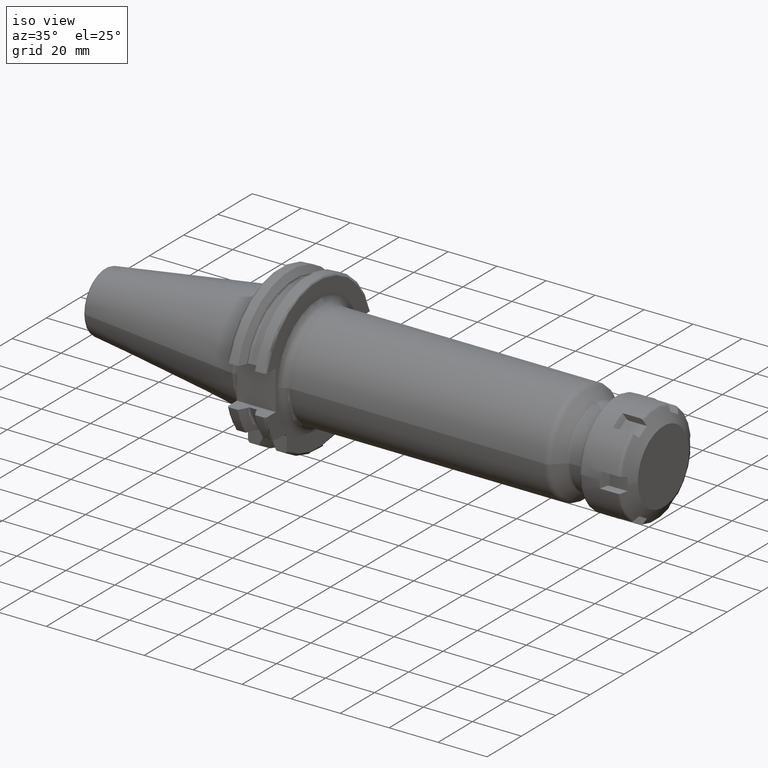
[diagram: clean part render]
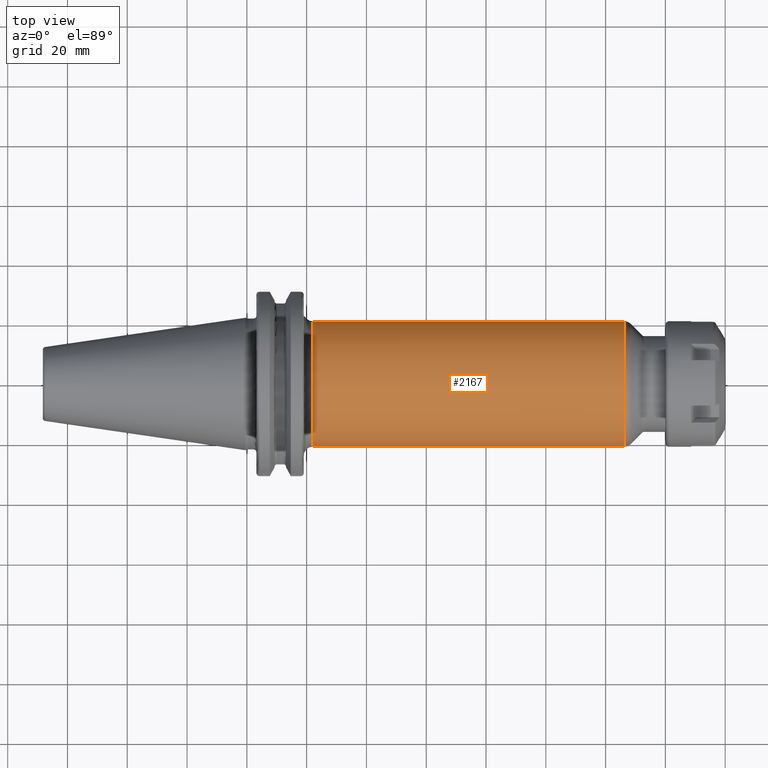
[diagram: tour spotlight — one face highlighted and labeled with its STEP entity id]
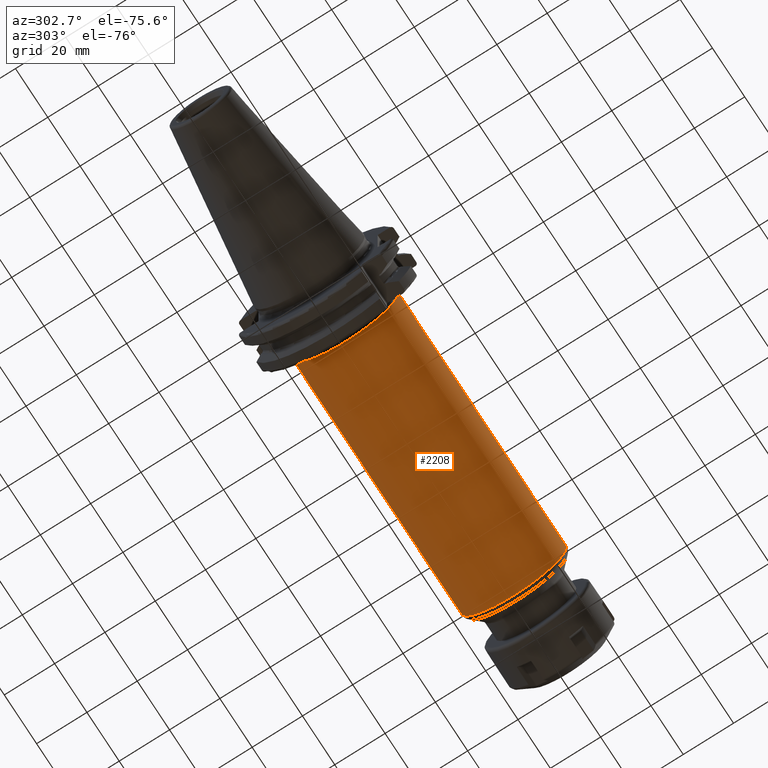
[diagram: tour spotlight — one face highlighted and labeled with its STEP entity id]
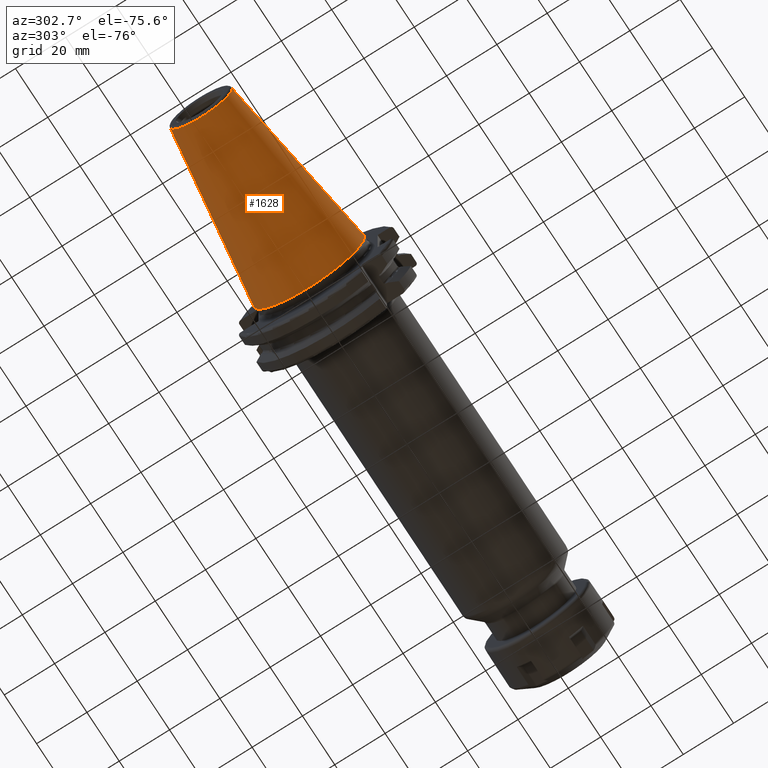
[diagram: tour spotlight — one face highlighted and labeled with its STEP entity id]
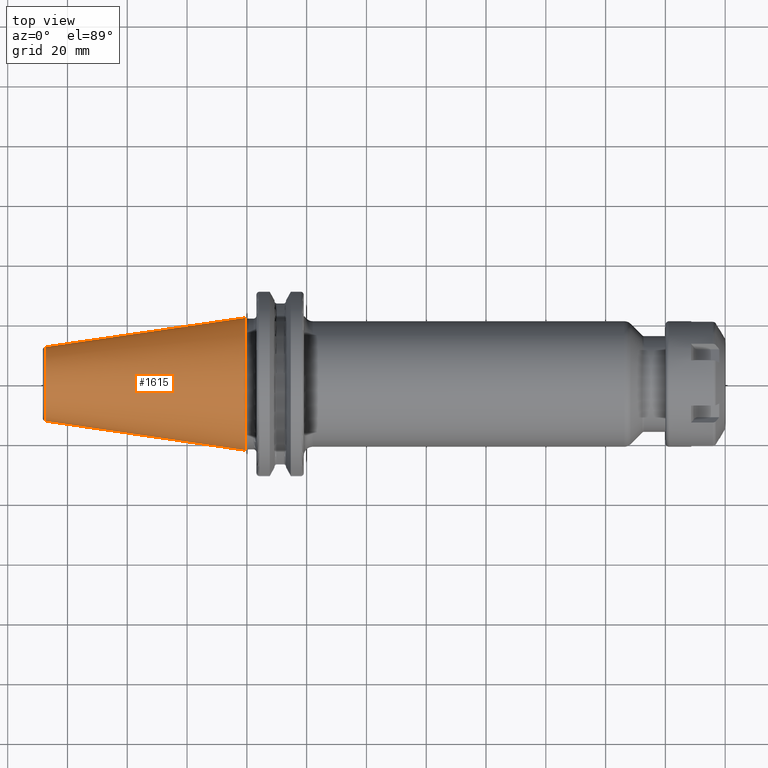
[diagram: tour spotlight — one face highlighted and labeled with its STEP entity id]
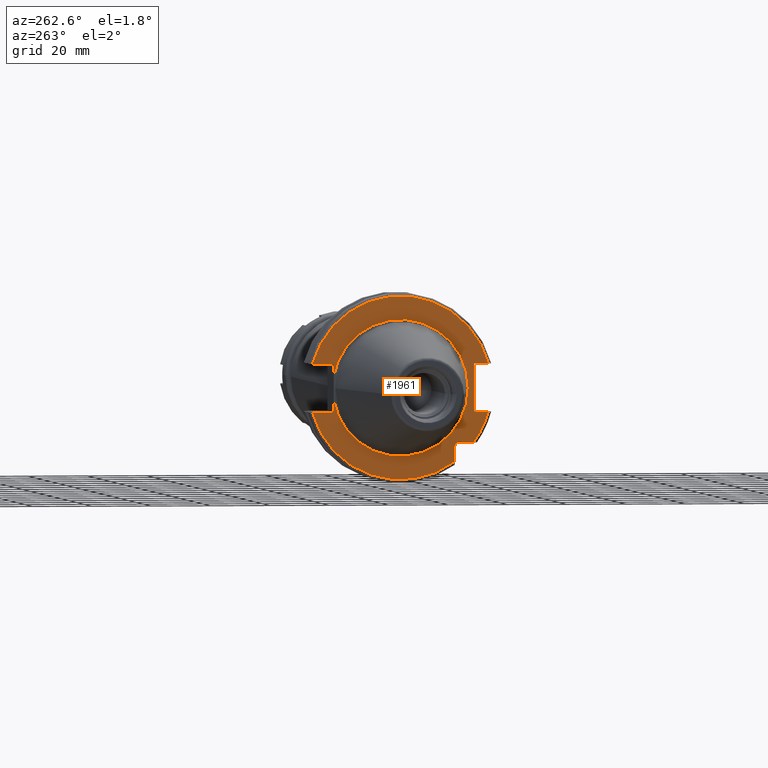
[diagram: tour spotlight — one face highlighted and labeled with its STEP entity id]
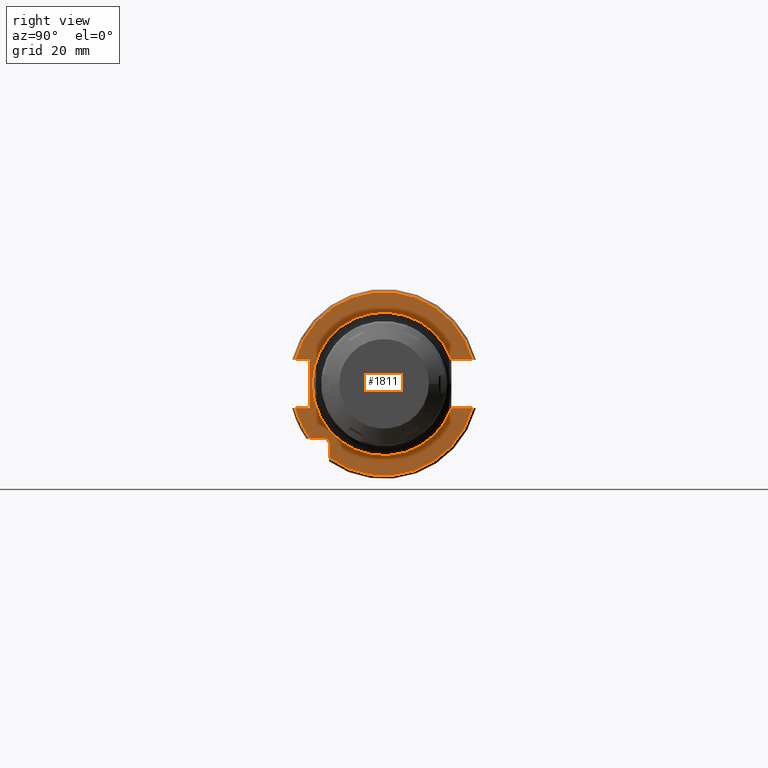
[diagram: tour spotlight — one face highlighted and labeled with its STEP entity id]
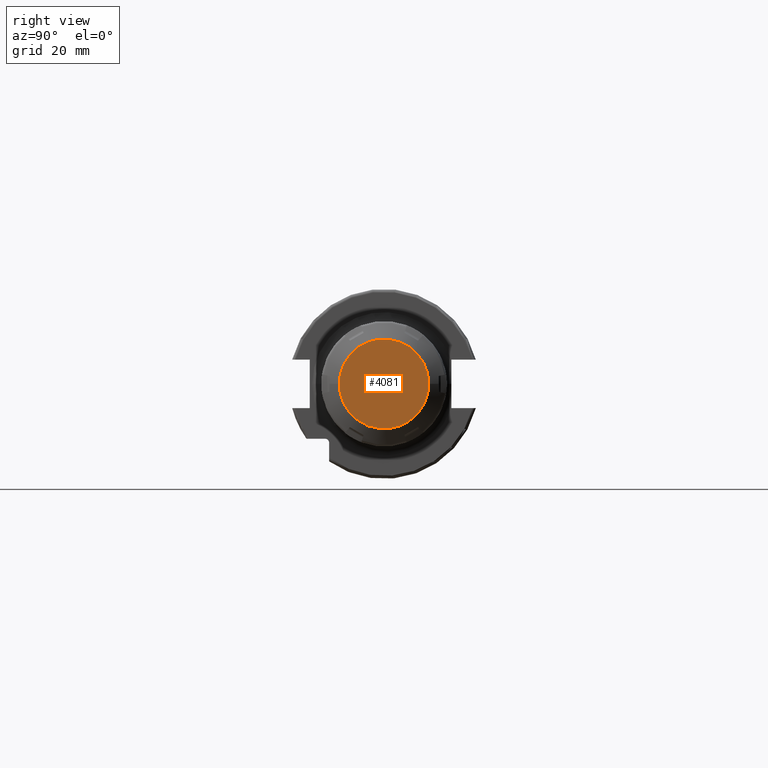
[diagram: tour spotlight — one face highlighted and labeled with its STEP entity id]
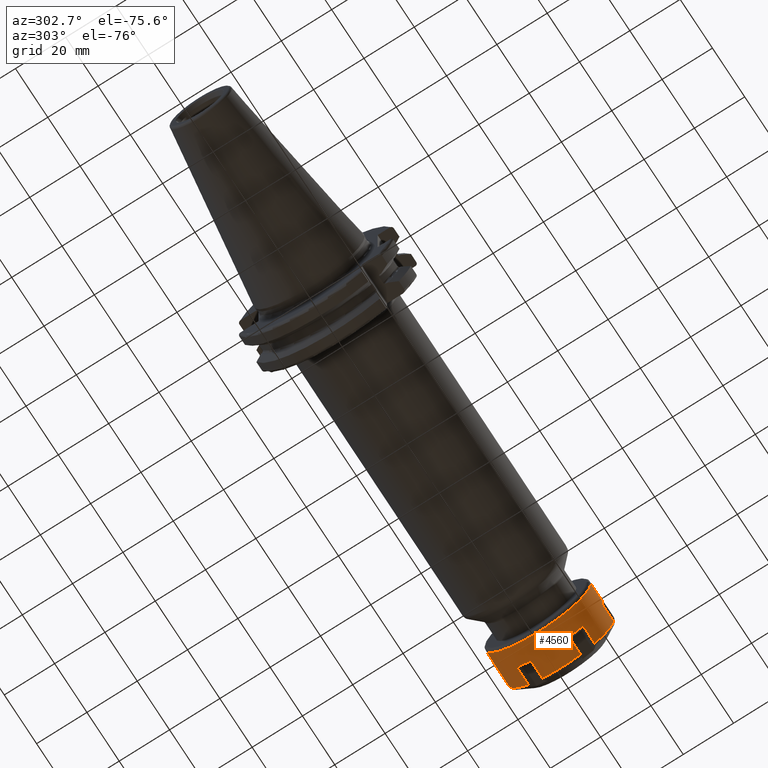
[diagram: tour spotlight — one face highlighted and labeled with its STEP entity id]
A machine part: a face-by-face anatomy tour. The part has 143 B-rep faces; the first image is the clean iso view, then the 8 largest visible faces are spotlighted one at a time (largest first), each with its STEP entity span.

Face 1 — top view, entity #2167. In plain terms, the highlighted cylindrical surface (partial cylindrical patch) has radius 21 mm, axis along (1, 0, 0).
Definition (entity closure, byte-faithful):
#522=CARTESIAN_POINT('',(1.262573593129E2,0.E0,0.E0));
#523=DIRECTION('',(-1.E0,0.E0,0.E0));
#524=DIRECTION('',(0.E0,-1.E0,0.E0));
#525=AXIS2_PLACEMENT_3D('',#522,#523,#524);
#527=CARTESIAN_POINT('',(2.205E1,0.E0,0.E0));
#528=DIRECTION('',(1.E0,0.E0,0.E0));
#529=DIRECTION('',(0.E0,1.E0,0.E0));
#530=AXIS2_PLACEMENT_3D('',#527,#528,#529);
#547=DIRECTION('',(-9.999999999849E-1,-1.502461288920E-10,5.502526232335E-6));
#548=VECTOR('',#547,1.042073593145E2);
#549=CARTESIAN_POINT('',(1.262573593129E2,2.1E1,-3.075391922278E-12));
#550=LINE('',#549,#548);
#556=DIRECTION('',(-1.E0,0.E0,-1.117964442232E-13));
#557=VECTOR('',#556,1.042073593129E2);
#558=CARTESIAN_POINT('',(1.262573593129E2,-2.1E1,3.074752133348E-12));
#559=LINE('',#558,#557);
#1505=CARTESIAN_POINT('',(2.205E1,-2.1E1,0.E0));
#1506=CARTESIAN_POINT('',(2.205E1,2.1E1,0.E0));
#1507=VERTEX_POINT('',#1505);
#1508=VERTEX_POINT('',#1506);
#1511=CARTESIAN_POINT('',(1.262573593129E2,2.1E1,0.E0));
#1512=CARTESIAN_POINT('',(1.262573593129E2,-2.1E1,0.E0));
#1513=VERTEX_POINT('',#1511);
#1514=VERTEX_POINT('',#1512);
#2153=CARTESIAN_POINT('',(1.26025E1,0.E0,0.E0));
#2154=DIRECTION('',(1.E0,0.E0,0.E0));
#2155=DIRECTION('',(0.E0,-1.E0,0.E0));
#2156=AXIS2_PLACEMENT_3D('',#2153,#2154,#2155);
#2157=CYLINDRICAL_SURFACE('',#2156,2.1E1);
#2159=ORIENTED_EDGE('',*,*,#2158,.F.);
#2161=ORIENTED_EDGE('',*,*,#2160,.T.);
#2162=ORIENTED_EDGE('',*,*,#2147,.F.);
#2164=ORIENTED_EDGE('',*,*,#2163,.F.);
#2165=EDGE_LOOP('',(#2159,#2161,#2162,#2164));
#2166=FACE_OUTER_BOUND('',#2165,.F.);
#2167=ADVANCED_FACE('',(#2166),#2157,.T.);
#526=CIRCLE('',#525,2.1E1);
#531=CIRCLE('',#530,2.1E1);
#2147=EDGE_CURVE('',#1508,#1507,#531,.T.);
#2158=EDGE_CURVE('',#1514,#1513,#526,.T.);
#2160=EDGE_CURVE('',#1514,#1507,#559,.T.);
#2163=EDGE_CURVE('',#1513,#1508,#550,.T.);

Face 2 — auxiliary view, entity #2208. In plain terms, the highlighted cylindrical surface (partial cylindrical patch) has radius 21 mm, axis along (1, 0, 0).
Definition (entity closure, byte-faithful):
#542=CARTESIAN_POINT('',(1.262573593129E2,0.E0,0.E0));
#543=DIRECTION('',(-1.E0,0.E0,0.E0));
#544=DIRECTION('',(0.E0,1.E0,0.E0));
#545=AXIS2_PLACEMENT_3D('',#542,#543,#544);
#547=DIRECTION('',(-9.999999999849E-1,-1.502461288920E-10,5.502526232335E-6));
#548=VECTOR('',#547,1.042073593145E2);
#549=CARTESIAN_POINT('',(1.262573593129E2,2.1E1,-3.075391922278E-12));
#550=LINE('',#549,#548);
#551=CARTESIAN_POINT('',(2.205E1,0.E0,0.E0));
#552=DIRECTION('',(1.E0,0.E0,0.E0));
#553=DIRECTION('',(0.E0,-1.E0,0.E0));
#554=AXIS2_PLACEMENT_3D('',#551,#552,#553);
#556=DIRECTION('',(-1.E0,0.E0,-1.117964442232E-13));
#557=VECTOR('',#556,1.042073593129E2);
#558=CARTESIAN_POINT('',(1.262573593129E2,-2.1E1,3.074752133348E-12));
#559=LINE('',#558,#557);
#1505=CARTESIAN_POINT('',(2.205E1,-2.1E1,0.E0));
#1506=CARTESIAN_POINT('',(2.205E1,2.1E1,0.E0));
#1507=VERTEX_POINT('',#1505);
#1508=VERTEX_POINT('',#1506);
#1511=CARTESIAN_POINT('',(1.262573593129E2,2.1E1,0.E0));
#1512=CARTESIAN_POINT('',(1.262573593129E2,-2.1E1,0.E0));
#1513=VERTEX_POINT('',#1511);
#1514=VERTEX_POINT('',#1512);
#2197=CARTESIAN_POINT('',(1.26025E1,0.E0,0.E0));
#2198=DIRECTION('',(1.E0,0.E0,0.E0));
#2199=DIRECTION('',(0.E0,-1.E0,0.E0));
#2200=AXIS2_PLACEMENT_3D('',#2197,#2198,#2199);
#2201=CYLINDRICAL_SURFACE('',#2200,2.1E1);
#2202=ORIENTED_EDGE('',*,*,#2188,.F.);
#2203=ORIENTED_EDGE('',*,*,#2163,.T.);
#2204=ORIENTED_EDGE('',*,*,#1771,.F.);
#2205=ORIENTED_EDGE('',*,*,#2160,.F.);
#2206=EDGE_LOOP('',(#2202,#2203,#2204,#2205));
#2207=FACE_OUTER_BOUND('',#2206,.F.);
#2208=ADVANCED_FACE('',(#2207),#2201,.T.);
#546=CIRCLE('',#545,2.1E1);
#555=CIRCLE('',#554,2.1E1);
#1771=EDGE_CURVE('',#1507,#1508,#555,.T.);
#2160=EDGE_CURVE('',#1514,#1507,#559,.T.);
#2163=EDGE_CURVE('',#1513,#1508,#550,.T.);
#2188=EDGE_CURVE('',#1513,#1514,#546,.T.);

Face 3 — auxiliary view, entity #1628. In plain terms, the highlighted conical surface has half-angle 8.298 deg.
Definition (entity closure, byte-faithful):
#32=CARTESIAN_POINT('',(-6.743710273571E1,0.E0,0.E0));
#33=DIRECTION('',(-1.E0,0.E0,0.E0));
#34=DIRECTION('',(0.E0,1.E0,0.E0));
#35=AXIS2_PLACEMENT_3D('',#32,#33,#34);
#47=DIRECTION('',(-9.895312636440E-1,-1.443186691705E-1,0.E0));
#48=VECTOR('',#47,6.765568998391E1);
#49=CARTESIAN_POINT('',(-4.896823332305E-1,2.215358204157E1,0.E0));
#50=LINE('',#49,#48);
#51=DIRECTION('',(-9.895312636440E-1,1.443186691705E-1,0.E0));
#52=VECTOR('',#51,6.765568998391E1);
#53=CARTESIAN_POINT('',(-4.896823332305E-1,-2.215358204157E1,0.E0));
#54=LINE('',#53,#52);
#55=CARTESIAN_POINT('',(-4.896823332305E-1,0.E0,0.E0));
#56=DIRECTION('',(-1.E0,0.E0,0.E0));
#57=DIRECTION('',(0.E0,1.E0,0.E0));
#58=AXIS2_PLACEMENT_3D('',#55,#56,#57);
#1288=CARTESIAN_POINT('',(-6.743710273571E1,1.238960290128E1,0.E0));
#1290=VERTEX_POINT('',#1288);
#1292=CARTESIAN_POINT('',(-6.743710273571E1,-1.238960290128E1,0.E0));
#1294=VERTEX_POINT('',#1292);
#1356=CARTESIAN_POINT('',(-4.896823332305E-1,2.215358204157E1,0.E0));
#1357=VERTEX_POINT('',#1356);
#1358=CARTESIAN_POINT('',(-4.896823332305E-1,-2.215358204157E1,0.E0));
#1359=VERTEX_POINT('',#1358);
#1616=CARTESIAN_POINT('',(-3.396339253447E1,0.E0,0.E0));
#1617=DIRECTION('',(1.E0,0.E0,0.E0));
#1618=DIRECTION('',(0.E0,-1.E0,0.E0));
#1619=AXIS2_PLACEMENT_3D('',#1616,#1617,#1618);
#1620=CONICAL_SURFACE('',#1619,1.727159247143E1,8.297826828206E0);
#1621=ORIENTED_EDGE('',*,*,#1606,.T.);
#1622=ORIENTED_EDGE('',*,*,#1583,.T.);
#1623=ORIENTED_EDGE('',*,*,#1610,.F.);
#1625=ORIENTED_EDGE('',*,*,#1624,.F.);
#1626=EDGE_LOOP('',(#1621,#1622,#1623,#1625));
#1627=FACE_OUTER_BOUND('',#1626,.F.);
#1628=ADVANCED_FACE('',(#1627),#1620,.T.);
#36=CIRCLE('',#35,1.238960290128E1);
#59=CIRCLE('',#58,2.215358204157E1);
#1583=EDGE_CURVE('',#1290,#1294,#36,.T.);
#1606=EDGE_CURVE('',#1357,#1290,#50,.T.);
#1610=EDGE_CURVE('',#1359,#1294,#54,.T.);
#1624=EDGE_CURVE('',#1357,#1359,#59,.T.);

Face 4 — top view, entity #1615. In plain terms, the highlighted conical surface has half-angle 8.298 deg.
Definition (entity closure, byte-faithful):
#37=CARTESIAN_POINT('',(-6.743710273571E1,0.E0,0.E0));
#38=DIRECTION('',(1.E0,0.E0,0.E0));
#39=DIRECTION('',(0.E0,1.E0,0.E0));
#40=AXIS2_PLACEMENT_3D('',#37,#38,#39);
#42=CARTESIAN_POINT('',(-4.896823332305E-1,0.E0,0.E0));
#43=DIRECTION('',(1.E0,0.E0,0.E0));
#44=DIRECTION('',(0.E0,1.E0,0.E0));
#45=AXIS2_PLACEMENT_3D('',#42,#43,#44);
#47=DIRECTION('',(-9.895312636440E-1,-1.443186691705E-1,0.E0));
#48=VECTOR('',#47,6.765568998391E1);
#49=CARTESIAN_POINT('',(-4.896823332305E-1,2.215358204157E1,0.E0));
#50=LINE('',#49,#48);
#51=DIRECTION('',(-9.895312636440E-1,1.443186691705E-1,0.E0));
#52=VECTOR('',#51,6.765568998391E1);
#53=CARTESIAN_POINT('',(-4.896823332305E-1,-2.215358204157E1,0.E0));
#54=LINE('',#53,#52);
#1288=CARTESIAN_POINT('',(-6.743710273571E1,1.238960290128E1,0.E0));
#1290=VERTEX_POINT('',#1288);
#1292=CARTESIAN_POINT('',(-6.743710273571E1,-1.238960290128E1,0.E0));
#1294=VERTEX_POINT('',#1292);
#1356=CARTESIAN_POINT('',(-4.896823332305E-1,2.215358204157E1,0.E0));
#1357=VERTEX_POINT('',#1356);
#1358=CARTESIAN_POINT('',(-4.896823332305E-1,-2.215358204157E1,0.E0));
#1359=VERTEX_POINT('',#1358);
#1601=CARTESIAN_POINT('',(-3.396339253447E1,0.E0,0.E0));
#1602=DIRECTION('',(1.E0,0.E0,0.E0));
#1603=DIRECTION('',(0.E0,-1.E0,0.E0));
#1604=AXIS2_PLACEMENT_3D('',#1601,#1602,#1603);
#1605=CONICAL_SURFACE('',#1604,1.727159247143E1,8.297826828206E0);
#1607=ORIENTED_EDGE('',*,*,#1606,.F.);
#1609=ORIENTED_EDGE('',*,*,#1608,.T.);
#1611=ORIENTED_EDGE('',*,*,#1610,.T.);
#1612=ORIENTED_EDGE('',*,*,#1594,.F.);
#1613=EDGE_LOOP('',(#1607,#1609,#1611,#1612));
#1614=FACE_OUTER_BOUND('',#1613,.F.);
#1615=ADVANCED_FACE('',(#1614),#1605,.T.);
#41=CIRCLE('',#40,1.238960290128E1);
#46=CIRCLE('',#45,2.215358204157E1);
#1594=EDGE_CURVE('',#1290,#1294,#41,.T.);
#1606=EDGE_CURVE('',#1357,#1290,#50,.T.);
#1608=EDGE_CURVE('',#1357,#1359,#46,.T.);
#1610=EDGE_CURVE('',#1359,#1294,#54,.T.);

Face 5 — auxiliary view, entity #1961. In plain terms, the highlighted planar face has unit normal (1, 0, 0).
Definition (entity closure, byte-faithful):
#117=CARTESIAN_POINT('',(3.2E0,0.E0,0.E0));
#118=DIRECTION('',(-1.E0,0.E0,0.E0));
#119=DIRECTION('',(0.E0,9.857923497268E-1,-1.679685780739E-1));
#120=AXIS2_PLACEMENT_3D('',#117,#118,#119);
#357=DIRECTION('',(0.E0,-1.E0,0.E0));
#358=VECTOR('',#357,4.990259339464E0);
#359=CARTESIAN_POINT('',(3.2E0,-1.97E1,-1.835E1));
#360=LINE('',#359,#358);
#361=DIRECTION('',(0.E0,0.E0,1.E0));
#362=VECTOR('',#361,4.990259339464E0);
#363=CARTESIAN_POINT('',(3.2E0,-1.835E1,-2.469025933946E1));
#364=LINE('',#363,#362);
#365=CARTESIAN_POINT('',(3.2E0,0.E0,0.E0));
#366=DIRECTION('',(-1.E0,0.E0,0.E0));
#367=DIRECTION('',(0.E0,9.647119303464E-1,-2.633075985372E-1));
#368=AXIS2_PLACEMENT_3D('',#365,#366,#367);
#370=DIRECTION('',(0.E0,-1.E0,0.E0));
#371=VECTOR('',#370,7.126950757280E0);
#372=CARTESIAN_POINT('',(3.2E0,2.967695075728E1,-8.1E0));
#373=LINE('',#372,#371);
#374=DIRECTION('',(0.E0,0.E0,-1.E0));
#375=VECTOR('',#374,4.257718776560E0);
#376=CARTESIAN_POINT('',(3.2E0,2.255E1,-3.842281223440E0));
#377=LINE('',#376,#375);
#378=DIRECTION('',(0.E0,0.E0,-1.E0));
#379=VECTOR('',#378,4.257718776560E0);
#380=CARTESIAN_POINT('',(3.2E0,2.255E1,8.1E0));
#381=LINE('',#380,#379);
#382=DIRECTION('',(0.E0,-1.E0,0.E0));
#383=VECTOR('',#382,7.126950757280E0);
#384=CARTESIAN_POINT('',(3.2E0,2.967695075728E1,8.1E0));
#385=LINE('',#384,#383);
#386=CARTESIAN_POINT('',(3.2E0,0.E0,0.E0));
#387=DIRECTION('',(1.E0,0.E0,0.E0));
#388=DIRECTION('',(0.E0,9.647119303464E-1,2.633075985372E-1));
#389=AXIS2_PLACEMENT_3D('',#386,#387,#388);
#391=DIRECTION('',(0.E0,1.E0,0.E0));
#392=VECTOR('',#391,4.826950757280E0);
#393=CARTESIAN_POINT('',(3.2E0,-2.967695075728E1,8.1E0));
#394=LINE('',#393,#392);
#395=DIRECTION('',(0.E0,0.E0,1.E0));
#396=VECTOR('',#395,1.62E1);
#397=CARTESIAN_POINT('',(3.2E0,-2.485E1,-8.1E0));
#398=LINE('',#397,#396);
#399=DIRECTION('',(0.E0,1.E0,0.E0));
#400=VECTOR('',#399,4.826950757280E0);
#401=CARTESIAN_POINT('',(3.2E0,-2.967695075728E1,-8.1E0));
#402=LINE('',#401,#400);
#403=CARTESIAN_POINT('',(3.2E0,0.E0,0.E0));
#404=DIRECTION('',(-1.E0,0.E0,0.E0));
#405=DIRECTION('',(0.E0,-8.026089992512E-1,-5.965054855750E-1));
#406=AXIS2_PLACEMENT_3D('',#403,#404,#405);
#417=CARTESIAN_POINT('',(3.2E0,-1.97E1,-1.97E1));
#418=DIRECTION('',(1.E0,0.E0,0.E0));
#419=DIRECTION('',(0.E0,1.E0,0.E0));
#420=AXIS2_PLACEMENT_3D('',#417,#418,#419);
#1077=CARTESIAN_POINT('',(3.2E0,0.E0,0.E0));
#1078=DIRECTION('',(1.E0,0.E0,0.E0));
#1079=DIRECTION('',(0.E0,9.857923497268E-1,1.679685780739E-1));
#1080=AXIS2_PLACEMENT_3D('',#1077,#1078,#1079);
#1300=CARTESIAN_POINT('',(3.2E0,-2.2875E1,0.E0));
#1302=VERTEX_POINT('',#1300);
#1442=CARTESIAN_POINT('',(3.2E0,2.967695075728E1,8.1E0));
#1443=CARTESIAN_POINT('',(3.2E0,2.255E1,8.1E0));
#1444=VERTEX_POINT('',#1442);
#1445=VERTEX_POINT('',#1443);
#1446=CARTESIAN_POINT('',(3.2E0,2.255E1,3.842281223440E0));
#1447=VERTEX_POINT('',#1446);
#1448=CARTESIAN_POINT('',(3.2E0,2.255E1,-3.842281223440E0));
#1449=CARTESIAN_POINT('',(3.2E0,2.255E1,-8.1E0));
#1450=VERTEX_POINT('',#1448);
#1451=VERTEX_POINT('',#1449);
#1452=CARTESIAN_POINT('',(3.2E0,2.967695075728E1,-8.1E0));
#1453=VERTEX_POINT('',#1452);
#1454=CARTESIAN_POINT('',(3.2E0,-2.967695075728E1,-8.1E0));
#1455=CARTESIAN_POINT('',(3.2E0,-2.485E1,-8.1E0));
#1456=VERTEX_POINT('',#1454);
#1457=VERTEX_POINT('',#1455);
#1458=CARTESIAN_POINT('',(3.2E0,-2.485E1,8.1E0));
#1459=VERTEX_POINT('',#1458);
#1460=CARTESIAN_POINT('',(3.2E0,-2.967695075728E1,8.1E0));
#1461=VERTEX_POINT('',#1460);
#1487=CARTESIAN_POINT('',(3.2E0,-1.835E1,-2.469025933946E1));
#1488=VERTEX_POINT('',#1487);
#1495=CARTESIAN_POINT('',(3.2E0,-1.97E1,-1.835E1));
#1496=CARTESIAN_POINT('',(3.2E0,-2.469025933946E1,-1.835E1));
#1497=VERTEX_POINT('',#1495);
#1498=VERTEX_POINT('',#1496);
#1499=CARTESIAN_POINT('',(3.2E0,-1.835E1,-1.97E1));
#1500=VERTEX_POINT('',#1499);
#1930=CARTESIAN_POINT('',(3.2E0,0.E0,0.E0));
#1931=DIRECTION('',(1.E0,0.E0,0.E0));
#1932=DIRECTION('',(0.E0,-1.E0,0.E0));
#1933=AXIS2_PLACEMENT_3D('',#1930,#1931,#1932);
#1934=PLANE('',#1933);
#1936=ORIENTED_EDGE('',*,*,#1935,.F.);
#1938=ORIENTED_EDGE('',*,*,#1937,.F.);
#1940=ORIENTED_EDGE('',*,*,#1939,.F.);
#1941=ORIENTED_EDGE('',*,*,#1907,.F.);
#1942=ORIENTED_EDGE('',*,*,#1733,.T.);
#1943=ORIENTED_EDGE('',*,*,#1720,.F.);
#1944=ORIENTED_EDGE('',*,*,#1697,.T.);
#1946=ORIENTED_EDGE('',*,*,#1945,.F.);
#1947=ORIENTED_EDGE('',*,*,#1715,.F.);
#1949=ORIENTED_EDGE('',*,*,#1948,.F.);
#1951=ORIENTED_EDGE('',*,*,#1950,.T.);
#1953=ORIENTED_EDGE('',*,*,#1952,.T.);
#1955=ORIENTED_EDGE('',*,*,#1954,.F.);
#1957=ORIENTED_EDGE('',*,*,#1956,.F.);
#1958=ORIENTED_EDGE('',*,*,#1925,.F.);
#1959=EDGE_LOOP('',(#1936,#1938,#1940,#1941,#1942,#1943,#1944,#1946,#1947,#1949,
#1951,#1953,#1955,#1957,#1958));
#1960=FACE_OUTER_BOUND('',#1959,.F.);
#1961=ADVANCED_FACE('',(#1960),#1934,.F.);
#121=CIRCLE('',#120,2.2875E1);
#369=CIRCLE('',#368,3.07625E1);
#390=CIRCLE('',#389,3.07625E1);
#407=CIRCLE('',#406,3.07625E1);
#421=CIRCLE('',#420,1.35E0);
#1081=CIRCLE('',#1080,2.2875E1);
#1697=EDGE_CURVE('',#1450,#1302,#121,.T.);
#1715=EDGE_CURVE('',#1445,#1447,#381,.T.);
#1720=EDGE_CURVE('',#1450,#1451,#377,.T.);
#1733=EDGE_CURVE('',#1453,#1451,#373,.T.);
#1907=EDGE_CURVE('',#1453,#1488,#369,.T.);
#1925=EDGE_CURVE('',#1498,#1456,#407,.T.);
#1935=EDGE_CURVE('',#1497,#1498,#360,.T.);
#1937=EDGE_CURVE('',#1500,#1497,#421,.T.);
#1939=EDGE_CURVE('',#1488,#1500,#364,.T.);
#1945=EDGE_CURVE('',#1447,#1302,#1081,.T.);
#1948=EDGE_CURVE('',#1444,#1445,#385,.T.);
#1950=EDGE_CURVE('',#1444,#1461,#390,.T.);
#1952=EDGE_CURVE('',#1461,#1459,#394,.T.);
#1954=EDGE_CURVE('',#1457,#1459,#398,.T.);
#1956=EDGE_CURVE('',#1456,#1457,#402,.T.);

Face 6 — right view, entity #1811. In plain terms, the highlighted planar face has unit normal (1, 0, 0).
Definition (entity closure, byte-faithful):
#149=CARTESIAN_POINT('',(1.905E1,0.E0,0.E0));
#150=DIRECTION('',(1.E0,0.E0,0.E0));
#151=DIRECTION('',(0.E0,-1.E0,0.E0));
#152=AXIS2_PLACEMENT_3D('',#149,#150,#151);
#154=DIRECTION('',(0.E0,-9.999999999986E-1,1.678113078084E-6));
#155=VECTOR('',#154,7.085085661916E0);
#156=CARTESIAN_POINT('',(1.905E1,2.967695075728E1,-8.1E0));
#157=LINE('',#156,#155);
#158=DIRECTION('',(0.E0,0.E0,1.E0));
#159=VECTOR('',#158,4.990259339464E0);
#160=CARTESIAN_POINT('',(1.905E1,-1.835E1,-2.469025933946E1));
#161=LINE('',#160,#159);
#162=DIRECTION('',(0.E0,-1.E0,0.E0));
#163=VECTOR('',#162,4.990259339464E0);
#164=CARTESIAN_POINT('',(1.905E1,-1.97E1,-1.835E1));
#165=LINE('',#164,#163);
#166=DIRECTION('',(0.E0,1.E0,0.E0));
#167=VECTOR('',#166,4.826950757280E0);
#168=CARTESIAN_POINT('',(1.905E1,-2.967695075728E1,-8.1E0));
#169=LINE('',#168,#167);
#170=DIRECTION('',(0.E0,0.E0,1.E0));
#171=VECTOR('',#170,1.62E1);
#172=CARTESIAN_POINT('',(1.905E1,-2.485E1,-8.1E0));
#173=LINE('',#172,#171);
#174=DIRECTION('',(0.E0,1.E0,0.E0));
#175=VECTOR('',#174,4.826950757280E0);
#176=CARTESIAN_POINT('',(1.905E1,-2.967695075728E1,8.1E0));
#177=LINE('',#176,#175);
#178=DIRECTION('',(0.E0,-9.999999999865E-1,-5.187156761154E-6));
#179=VECTOR('',#178,7.085112424402E0);
#180=CARTESIAN_POINT('',(1.905E1,2.967695075728E1,8.1E0));
#181=LINE('',#180,#179);
#182=CARTESIAN_POINT('',(1.905E1,0.E0,0.E0));
#183=DIRECTION('',(1.E0,0.E0,0.E0));
#184=DIRECTION('',(0.E0,9.413257058715E-1,3.374995043931E-1));
#185=AXIS2_PLACEMENT_3D('',#182,#183,#184);
#196=CARTESIAN_POINT('',(1.905E1,2.967695075728E1,-8.1E0));
#209=CARTESIAN_POINT('',(1.905E1,0.E0,0.E0));
#210=DIRECTION('',(-1.E0,0.E0,0.E0));
#211=DIRECTION('',(0.E0,9.647119303464E-1,-2.633075985372E-1));
#212=AXIS2_PLACEMENT_3D('',#209,#210,#211);
#225=CARTESIAN_POINT('',(1.905E1,0.E0,0.E0));
#226=DIRECTION('',(-1.E0,0.E0,0.E0));
#227=DIRECTION('',(0.E0,-8.026089992512E-1,-5.965054855750E-1));
#228=AXIS2_PLACEMENT_3D('',#225,#226,#227);
#412=CARTESIAN_POINT('',(1.905E1,-1.97E1,-1.97E1));
#413=DIRECTION('',(-1.E0,0.E0,0.E0));
#414=DIRECTION('',(0.E0,0.E0,1.E0));
#415=AXIS2_PLACEMENT_3D('',#412,#413,#414);
#672=CARTESIAN_POINT('',(1.905E1,2.967695075728E1,8.1E0));
#683=CARTESIAN_POINT('',(1.905E1,0.E0,0.E0));
#684=DIRECTION('',(1.E0,0.E0,0.E0));
#685=DIRECTION('',(0.E0,9.647119303464E-1,2.633075985372E-1));
#686=AXIS2_PLACEMENT_3D('',#683,#684,#685);
#1426=CARTESIAN_POINT('',(1.905E1,-2.967695075728E1,-8.1E0));
#1427=CARTESIAN_POINT('',(1.905E1,-2.485E1,-8.1E0));
#1428=VERTEX_POINT('',#1426);
#1429=VERTEX_POINT('',#1427);
#1430=CARTESIAN_POINT('',(1.905E1,-2.485E1,8.1E0));
#1431=VERTEX_POINT('',#1430);
#1432=CARTESIAN_POINT('',(1.905E1,-2.967695075728E1,8.1E0));
#1433=VERTEX_POINT('',#1432);
#1471=VERTEX_POINT('',#672);
#1472=VERTEX_POINT('',#196);
#1481=CARTESIAN_POINT('',(1.905E1,-1.835E1,-2.469025933946E1));
#1482=VERTEX_POINT('',#1481);
#1489=CARTESIAN_POINT('',(1.905E1,-1.97E1,-1.835E1));
#1490=CARTESIAN_POINT('',(1.905E1,-2.469025933946E1,-1.835E1));
#1491=VERTEX_POINT('',#1489);
#1492=VERTEX_POINT('',#1490);
#1493=CARTESIAN_POINT('',(1.905E1,-1.835E1,-1.97E1));
#1494=VERTEX_POINT('',#1493);
#1501=CARTESIAN_POINT('',(1.905E1,-2.4E1,0.E0));
#1502=CARTESIAN_POINT('',(1.905E1,2.259182913203E1,-8.099954102898E0));
#1503=VERTEX_POINT('',#1501);
#1504=VERTEX_POINT('',#1502);
#1509=CARTESIAN_POINT('',(1.905E1,2.259181694092E1,8.099988105433E0));
#1510=VERTEX_POINT('',#1509);
#1780=CARTESIAN_POINT('',(1.905E1,0.E0,0.E0));
#1781=DIRECTION('',(1.E0,0.E0,0.E0));
#1782=DIRECTION('',(0.E0,-1.E0,0.E0));
#1783=AXIS2_PLACEMENT_3D('',#1780,#1781,#1782);
#1784=PLANE('',#1783);
#1785=ORIENTED_EDGE('',*,*,#1767,.T.);
#1786=ORIENTED_EDGE('',*,*,#1757,.F.);
#1788=ORIENTED_EDGE('',*,*,#1787,.T.);
#1790=ORIENTED_EDGE('',*,*,#1789,.T.);
#1792=ORIENTED_EDGE('',*,*,#1791,.F.);
#1794=ORIENTED_EDGE('',*,*,#1793,.T.);
#1796=ORIENTED_EDGE('',*,*,#1795,.T.);
#1798=ORIENTED_EDGE('',*,*,#1797,.T.);
#1800=ORIENTED_EDGE('',*,*,#1799,.T.);
#1802=ORIENTED_EDGE('',*,*,#1801,.F.);
#1804=ORIENTED_EDGE('',*,*,#1803,.F.);
#1806=ORIENTED_EDGE('',*,*,#1805,.T.);
#1808=ORIENTED_EDGE('',*,*,#1807,.T.);
#1809=EDGE_LOOP('',(#1785,#1786,#1788,#1790,#1792,#1794,#1796,#1798,#1800,#1802,
#1804,#1806,#1808));
#1810=FACE_OUTER_BOUND('',#1809,.F.);
#1811=ADVANCED_FACE('',(#1810),#1784,.T.);
#153=CIRCLE('',#152,2.4E1);
#186=CIRCLE('',#185,2.4E1);
#213=CIRCLE('',#212,3.07625E1);
#229=CIRCLE('',#228,3.07625E1);
#416=CIRCLE('',#415,1.35E0);
#687=CIRCLE('',#686,3.07625E1);
#1757=EDGE_CURVE('',#1472,#1504,#157,.T.);
#1767=EDGE_CURVE('',#1503,#1504,#153,.T.);
#1787=EDGE_CURVE('',#1472,#1482,#213,.T.);
#1789=EDGE_CURVE('',#1482,#1494,#161,.T.);
#1791=EDGE_CURVE('',#1491,#1494,#416,.T.);
#1793=EDGE_CURVE('',#1491,#1492,#165,.T.);
#1795=EDGE_CURVE('',#1492,#1428,#229,.T.);
#1797=EDGE_CURVE('',#1428,#1429,#169,.T.);
#1799=EDGE_CURVE('',#1429,#1431,#173,.T.);
#1801=EDGE_CURVE('',#1433,#1431,#177,.T.);
#1803=EDGE_CURVE('',#1471,#1433,#687,.T.);
#1805=EDGE_CURVE('',#1471,#1510,#181,.T.);
#1807=EDGE_CURVE('',#1510,#1503,#186,.T.);

Face 7 — right view, entity #4081. In plain terms, the highlighted planar face has unit normal (1, 0, 0).
Definition (entity closure, byte-faithful):
#3236=CARTESIAN_POINT('',(2.E1,-2.266909448450E-14,0.E0));
#3237=DIRECTION('',(-1.E0,0.E0,0.E0));
#3238=DIRECTION('',(0.E0,1.E0,0.E0));
#3239=AXIS2_PLACEMENT_3D('',#3236,#3237,#3238);
#3558=CARTESIAN_POINT('',(2.E1,-2.266909448450E-14,0.E0));
#3559=DIRECTION('',(1.E0,0.E0,0.E0));
#3560=DIRECTION('',(0.E0,1.E0,0.E0));
#3561=AXIS2_PLACEMENT_3D('',#3558,#3559,#3560);
#3968=CARTESIAN_POINT('',(2.E1,1.5E1,0.E0));
#3969=CARTESIAN_POINT('',(2.E1,-1.5E1,0.E0));
#3970=VERTEX_POINT('',#3968);
#3971=VERTEX_POINT('',#3969);
#4070=CARTESIAN_POINT('',(2.E1,-2.266909448450E-14,0.E0));
#4071=DIRECTION('',(1.E0,0.E0,0.E0));
#4072=DIRECTION('',(0.E0,-1.E0,0.E0));
#4073=AXIS2_PLACEMENT_3D('',#4070,#4071,#4072);
#4074=PLANE('',#4073);
#4076=ORIENTED_EDGE('',*,*,#4075,.T.);
#4078=ORIENTED_EDGE('',*,*,#4077,.F.);
#4079=EDGE_LOOP('',(#4076,#4078));
#4080=FACE_OUTER_BOUND('',#4079,.F.);
#4081=ADVANCED_FACE('',(#4080),#4074,.T.);
#3240=CIRCLE('',#3239,1.5E1);
#3562=CIRCLE('',#3561,1.5E1);
#4075=EDGE_CURVE('',#3970,#3971,#3240,.T.);
#4077=EDGE_CURVE('',#3970,#3971,#3562,.T.);

Face 8 — auxiliary view, entity #4560. In plain terms, the highlighted cylindrical surface (partial cylindrical patch) has radius 21 mm, axis along (1, 0, 0).
Definition (entity closure, byte-faithful):
#3284=DIRECTION('',(9.999999999979E-1,1.452794262624E-6,-1.445246504649E-6));
#3285=VECTOR('',#3284,7.214202484702E0);
#3286=CARTESIAN_POINT('',(8.600008063689E0,7.578287451463E0,-1.958491746355E1));
#3287=LINE('',#3286,#3285);
#3300=DIRECTION('',(-1.E0,0.E0,0.E0));
#3301=VECTOR('',#3300,7.214210890546E0);
#3302=CARTESIAN_POINT('',(1.581421054838E1,1.317189611779E1,-1.635546247167E1));
#3303=LINE('',#3302,#3301);
#3382=CARTESIAN_POINT('',(1.581421054838E1,-1.317189611779E1,
-1.635546247167E1));
#3402=CARTESIAN_POINT('',(1.581421054838E1,-2.075019405E1,-3.229465418179E0));
#3404=CARTESIAN_POINT('',(1.581421054838E1,7.578297932215E0,-1.958492788985E1));
#3424=CARTESIAN_POINT('',(1.581421054838E1,-7.578297932215E0,
-1.958492788985E1));
#3432=CARTESIAN_POINT('',(1.581421054838E1,1.317189611779E1,-1.635546247167E1));
#3434=CARTESIAN_POINT('',(1.581421054838E1,2.075019405E1,-3.229465418179E0));
#3594=DIRECTION('',(-1.E0,3.594961594389E-14,0.E0));
#3595=VECTOR('',#3594,7.214210548375E0);
#3596=CARTESIAN_POINT('',(1.581421054838E1,-2.075019405E1,-3.229465418179E0));
#3597=LINE('',#3596,#3595);
#3609=CARTESIAN_POINT('',(1.581421054838E1,-1.792614389339E-14,0.E0));
#3610=DIRECTION('',(-1.E0,0.E0,0.E0));
#3611=DIRECTION('',(0.E0,9.881044785716E-1,-1.537840675323E-1));
#3612=AXIS2_PLACEMENT_3D('',#3609,#3610,#3611);
#3614=CARTESIAN_POINT('',(8.6E0,0.E0,0.E0));
#3615=DIRECTION('',(-1.E0,0.E0,0.E0));
#3616=DIRECTION('',(0.E0,1.E0,0.E0));
#3617=AXIS2_PLACEMENT_3D('',#3614,#3615,#3616);
#3619=DIRECTION('',(-1.E0,9.411549393136E-12,6.000804948597E-11));
#3620=VECTOR('',#3619,7.350000000040E0);
#3621=CARTESIAN_POINT('',(8.600000000040E0,2.099999999993E1,
-4.377820052165E-10));
#3622=LINE('',#3621,#3620);
#3623=CARTESIAN_POINT('',(1.25E0,0.E0,0.E0));
#3624=DIRECTION('',(-1.E0,0.E0,0.E0));
#3625=DIRECTION('',(0.E0,1.E0,0.E0));
#3626=AXIS2_PLACEMENT_3D('',#3623,#3624,#3625);
#3628=DIRECTION('',(-1.E0,-9.436200875805E-12,-6.000654573246E-11));
#3629=VECTOR('',#3628,7.350000000040E0);
#3630=CARTESIAN_POINT('',(8.600000000040E0,-2.099999999993E1,
4.377679851591E-10));
#3631=LINE('',#3630,#3629);
#3632=CARTESIAN_POINT('',(8.6E0,0.E0,0.E0));
#3633=DIRECTION('',(-1.E0,0.E0,0.E0));
#3634=DIRECTION('',(0.E0,-9.881044785716E-1,-1.537840675323E-1));
#3635=AXIS2_PLACEMENT_3D('',#3632,#3633,#3634);
#3637=CARTESIAN_POINT('',(1.581421054838E1,-1.792614389339E-14,0.E0));
#3638=DIRECTION('',(-1.E0,0.E0,0.E0));
#3639=DIRECTION('',(0.E0,-6.272331484661E-1,-7.788315462700E-1));
#3640=AXIS2_PLACEMENT_3D('',#3637,#3638,#3639);
#3642=CARTESIAN_POINT('',(1.581421054838E1,-1.792614389339E-14,0.E0));
#3643=DIRECTION('',(-1.E0,0.E0,0.E0));
#3644=DIRECTION('',(0.E0,3.608713301055E-1,-9.326156138023E-1));
#3645=AXIS2_PLACEMENT_3D('',#3642,#3643,#3644);
#3664=CARTESIAN_POINT('',(8.600000318507E0,-1.804967895792E-5,
1.352930437069E-5));
#3665=DIRECTION('',(-1.E0,0.E0,0.E0));
#3666=DIRECTION('',(0.E0,6.272333551021E-1,-7.788313798553E-1));
#3667=AXIS2_PLACEMENT_3D('',#3664,#3665,#3666);
#3683=DIRECTION('',(1.E0,0.E0,0.E0));
#3684=VECTOR('',#3683,7.214210548375E0);
#3685=CARTESIAN_POINT('',(8.6E0,2.075019405E1,-3.229465418179E0));
#3686=LINE('',#3685,#3684);
#3908=DIRECTION('',(9.999999999998E-1,6.709444709144E-7,9.098406604267E-8));
#3909=VECTOR('',#3908,7.214212575504E0);
#3910=CARTESIAN_POINT('',(8.599997972873E0,-1.317190095812E1,
-1.635546312805E1));
#3911=LINE('',#3910,#3909);
#3924=DIRECTION('',(-1.E0,0.E0,0.E0));
#3925=VECTOR('',#3924,7.214210815093E0);
#3926=CARTESIAN_POINT('',(1.581421054838E1,-7.578297932215E0,
-1.958492788985E1));
#3927=LINE('',#3926,#3925);
#3957=CARTESIAN_POINT('',(8.600000222181E0,-7.035000469932E-6,
-1.879731692430E-6));
#3958=DIRECTION('',(-1.E0,0.E0,0.E0));
#3959=DIRECTION('',(0.E0,-3.608710688571E-1,-9.326157148911E-1));
#3960=AXIS2_PLACEMENT_3D('',#3957,#3958,#3959);
#3976=CARTESIAN_POINT('',(1.25E0,2.1E1,0.E0));
#3977=CARTESIAN_POINT('',(1.25E0,-2.1E1,0.E0));
#3978=VERTEX_POINT('',#3976);
#3979=VERTEX_POINT('',#3977);
#3986=VERTEX_POINT('',#3434);
#3987=CARTESIAN_POINT('',(8.6E0,2.1E1,0.E0));
#3988=CARTESIAN_POINT('',(8.6E0,2.075019405E1,-3.229465418179E0));
#3989=VERTEX_POINT('',#3987);
#3990=VERTEX_POINT('',#3988);
#4031=VERTEX_POINT('',#3402);
#4032=CARTESIAN_POINT('',(8.6E0,-2.1E1,0.E0));
#4034=VERTEX_POINT('',#4032);
#4036=CARTESIAN_POINT('',(8.6E0,-2.075019405E1,-3.229465418179E0));
#4037=VERTEX_POINT('',#4036);
#4046=VERTEX_POINT('',#3382);
#4047=VERTEX_POINT('',#3424);
#4048=CARTESIAN_POINT('',(8.600000222181E0,-7.578297626635E0,
-1.958492710012E1));
#4049=CARTESIAN_POINT('',(8.600000222181E0,-1.317189658068E1,
-1.635546304645E1));
#4050=VERTEX_POINT('',#4048);
#4051=VERTEX_POINT('',#4049);
#4060=VERTEX_POINT('',#3404);
#4061=VERTEX_POINT('',#3432);
#4062=CARTESIAN_POINT('',(8.600000318507E0,1.317189540004E1,-1.635546158045E1));
#4063=CARTESIAN_POINT('',(8.600000318507E0,7.578298503418E0,-1.958492936603E1));
#4064=VERTEX_POINT('',#4062);
#4065=VERTEX_POINT('',#4063);
#4527=CARTESIAN_POINT('',(-1.E0,0.E0,0.E0));
#4528=DIRECTION('',(1.E0,0.E0,0.E0));
#4529=DIRECTION('',(0.E0,-1.E0,0.E0));
#4530=AXIS2_PLACEMENT_3D('',#4527,#4528,#4529);
#4531=CYLINDRICAL_SURFACE('',#4530,2.1E1);
#4533=ORIENTED_EDGE('',*,*,#4532,.F.);
#4534=ORIENTED_EDGE('',*,*,#4206,.F.);
#4535=ORIENTED_EDGE('',*,*,#4311,.F.);
#4537=ORIENTED_EDGE('',*,*,#4536,.F.);
#4539=ORIENTED_EDGE('',*,*,#4538,.F.);
#4541=ORIENTED_EDGE('',*,*,#4540,.T.);
#4543=ORIENTED_EDGE('',*,*,#4542,.T.);
#4545=ORIENTED_EDGE('',*,*,#4544,.F.);
#4547=ORIENTED_EDGE('',*,*,#4546,.F.);
#4548=ORIENTED_EDGE('',*,*,#4507,.F.);
#4549=ORIENTED_EDGE('',*,*,#4280,.F.);
#4551=ORIENTED_EDGE('',*,*,#4550,.F.);
#4553=ORIENTED_EDGE('',*,*,#4552,.F.);
#4555=ORIENTED_EDGE('',*,*,#4554,.F.);
#4556=ORIENTED_EDGE('',*,*,#4294,.F.);
#4557=ORIENTED_EDGE('',*,*,#4130,.F.);
#4558=EDGE_LOOP('',(#4533,#4534,#4535,#4537,#4539,#4541,#4543,#4545,#4547,#4548,
#4549,#4551,#4553,#4555,#4556,#4557));
#4559=FACE_OUTER_BOUND('',#4558,.F.);
#4560=ADVANCED_FACE('',(#4559),#4531,.T.);
#3613=CIRCLE('',#3612,2.1E1);
#3618=CIRCLE('',#3617,2.1E1);
#3627=CIRCLE('',#3626,2.1E1);
#3636=CIRCLE('',#3635,2.1E1);
#3641=CIRCLE('',#3640,2.1E1);
#3646=CIRCLE('',#3645,2.1E1);
#3668=CIRCLE('',#3667,2.100002071410E1);
#3961=CIRCLE('',#3960,2.099999486142E1);
#4130=EDGE_CURVE('',#4065,#4060,#3287,.T.);
#4206=EDGE_CURVE('',#4061,#4064,#3303,.T.);
#4280=EDGE_CURVE('',#4046,#4031,#3641,.T.);
#4294=EDGE_CURVE('',#4060,#4047,#3646,.T.);
#4311=EDGE_CURVE('',#3986,#4061,#3613,.T.);
#4507=EDGE_CURVE('',#4031,#4037,#3597,.T.);
#4532=EDGE_CURVE('',#4064,#4065,#3668,.T.);
#4536=EDGE_CURVE('',#3990,#3986,#3686,.T.);
#4538=EDGE_CURVE('',#3989,#3990,#3618,.T.);
#4540=EDGE_CURVE('',#3989,#3978,#3622,.T.);
#4542=EDGE_CURVE('',#3978,#3979,#3627,.T.);
#4544=EDGE_CURVE('',#4034,#3979,#3631,.T.);
#4546=EDGE_CURVE('',#4037,#4034,#3636,.T.);
#4550=EDGE_CURVE('',#4051,#4046,#3911,.T.);
#4552=EDGE_CURVE('',#4050,#4051,#3961,.T.);
#4554=EDGE_CURVE('',#4047,#4050,#3927,.T.);